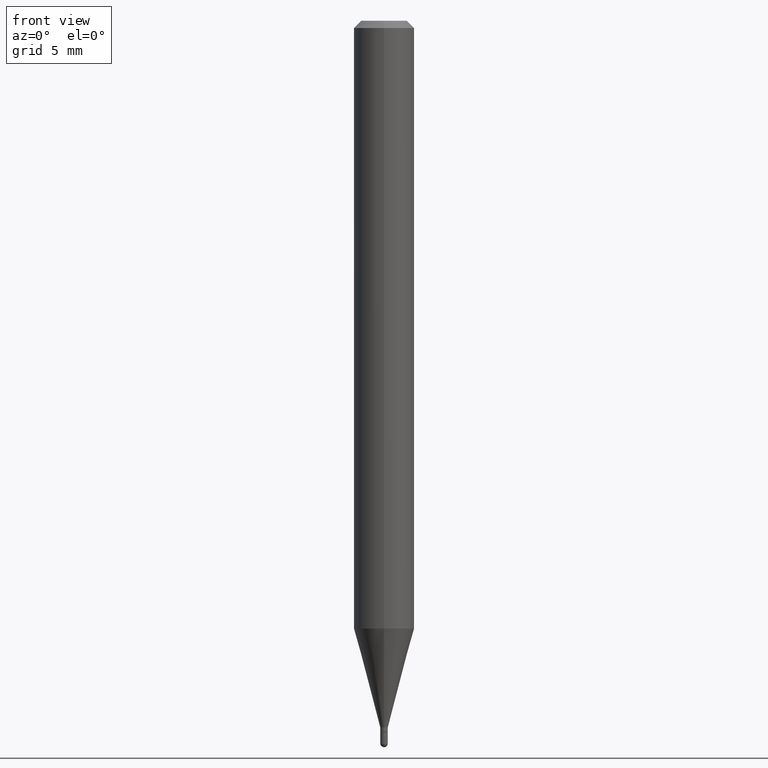
[diagram: clean part render]
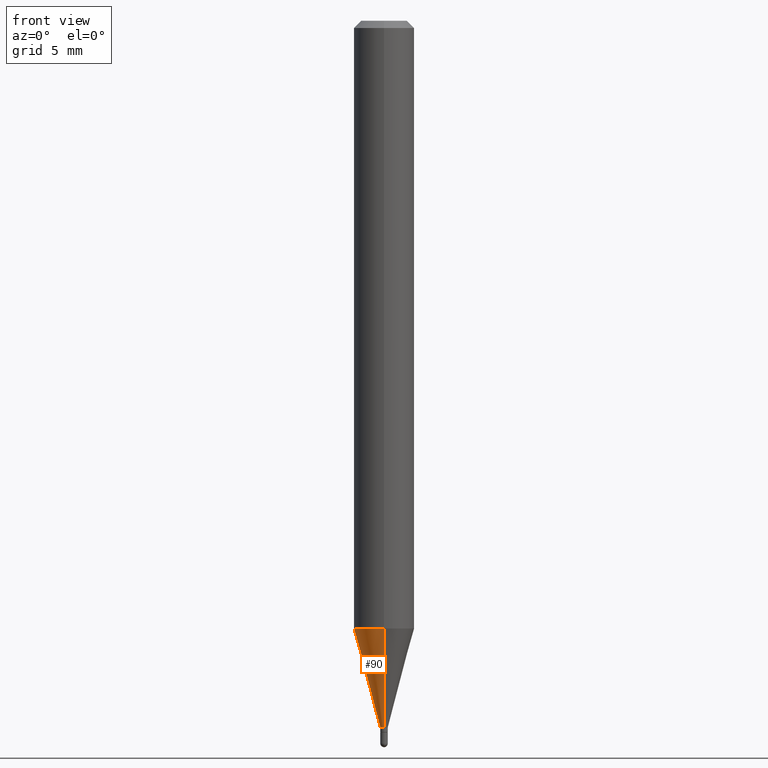
[diagram: same view with one face highlighted and labeled with its STEP entity id]
A machine part, front view. The second image highlights one B-rep face of the part: STEP entity #90.
In plain terms, the highlighted conical surface has half-angle 15 deg.
Its self-contained STEP definition (entity closure, byte-faithful):
#2 = DIRECTION ( 'NONE',  ( -2.438888398687161749E-29, 3.500904856913780958E-15, 1.000000000000000000 ) ) ;
#15 = VECTOR ( 'NONE', #78, 39.37007874015748143 ) ;
#18 = CARTESIAN_POINT ( 'NONE',  ( -5.446710888591297207E-17, -0.007800000000004489974, -1.459000000000000519 ) ) ;
#19 = ORIENTED_EDGE ( 'NONE', *, *, #257, .T. ) ;
#21 = CARTESIAN_POINT ( 'NONE',  ( -4.364351673553611504E-16, -0.06250000000000441314, -1.254856820825980934 ) ) ;
#26 = VERTEX_POINT ( 'NONE', #21 ) ;
#55 = AXIS2_PLACEMENT_3D ( 'NONE', #358, #353, #396 ) ;
#78 = DIRECTION ( 'NONE',  ( 1.839019923739600315E-15, 0.2588190451025249583, 0.9659258262890670910 ) ) ;
#79 = CONICAL_SURFACE ( 'NONE', #55, 0.007799999999999381213, 0.2617993877991502960 ) ;
#90 = ADVANCED_FACE ( 'NONE', ( #189 ), #79, .T. ) ;
#125 = CARTESIAN_POINT ( 'NONE',  ( 4.440892098500931845E-16, 0.06249999999999561462, -1.254856820825981378 ) ) ;
#127 = CARTESIAN_POINT ( 'NONE',  ( 3.558338173684570517E-29, -5.107820186237207836E-15, -1.459000000000000519 ) ) ;
#134 = CARTESIAN_POINT ( 'NONE',  ( 2.497557716197062816E-16, 0.007799999999994272452, -1.459000000000000519 ) ) ;
#164 = LINE ( 'NONE', #366, #15 ) ;
#189 = FACE_OUTER_BOUND ( 'NONE', #211, .T. ) ;
#208 = DIRECTION ( 'NONE',  ( -2.438888398687161749E-29, 3.500904856913780958E-15, 1.000000000000000000 ) ) ;
#211 = EDGE_LOOP ( 'NONE', ( #486, #19, #423, #504 ) ) ;
#257 = EDGE_CURVE ( 'NONE', #449, #410, #394, .T. ) ;
#320 = AXIS2_PLACEMENT_3D ( 'NONE', #444, #2, #325 ) ;
#325 = DIRECTION ( 'NONE',  ( -6.982962677686265922E-15, -1.000000000000000000, 4.370956789862819572E-15 ) ) ;
#331 = VERTEX_POINT ( 'NONE', #125 ) ;
#338 = EDGE_CURVE ( 'NONE', #449, #331, #164, .T. ) ;
#345 = CIRCLE ( 'NONE', #320, 0.06250000000000002776 ) ;
#353 = DIRECTION ( 'NONE',  ( -2.438888398687161749E-29, 3.500904856913780958E-15, 1.000000000000000000 ) ) ;
#358 = CARTESIAN_POINT ( 'NONE',  ( 3.558338173684570517E-29, -5.107820186237207836E-15, -1.459000000000000519 ) ) ;
#366 = CARTESIAN_POINT ( 'NONE',  ( 5.542233338931899661E-17, 0.007799999999994273320, -1.459000000000000519 ) ) ;
#370 = EDGE_CURVE ( 'NONE', #331, #26, #345, .T. ) ;
#373 = DIRECTION ( 'NONE',  ( -6.982962677686266711E-15, -1.000000000000000000, 0.000000000000000000 ) ) ;
#390 = EDGE_CURVE ( 'NONE', #410, #26, #498, .T. ) ;
#394 = CIRCLE ( 'NONE', #432, 0.007799999999999381213 ) ;
#396 = DIRECTION ( 'NONE',  ( -6.982962677686266711E-15, -1.000000000000000000, 0.000000000000000000 ) ) ;
#410 = VERTEX_POINT ( 'NONE', #450 ) ;
#420 = DIRECTION ( 'NONE',  ( -1.807323732225330139E-15, -0.2588190451025181860, 0.9659258262890689783 ) ) ;
#423 = ORIENTED_EDGE ( 'NONE', *, *, #390, .T. ) ;
#432 = AXIS2_PLACEMENT_3D ( 'NONE', #127, #208, #373 ) ;
#437 = VECTOR ( 'NONE', #420, 39.37007874015748143 ) ;
#444 = CARTESIAN_POINT ( 'NONE',  ( 3.060455742325940316E-29, -4.393134338761063639E-15, -1.254856820825981156 ) ) ;
#449 = VERTEX_POINT ( 'NONE', #134 ) ;
#450 = CARTESIAN_POINT ( 'NONE',  ( -5.446710888591297207E-17, -0.007800000000004489974, -1.459000000000000519 ) ) ;
#486 = ORIENTED_EDGE ( 'NONE', *, *, #338, .F. ) ;
#498 = LINE ( 'NONE', #18, #437 ) ;
#504 = ORIENTED_EDGE ( 'NONE', *, *, #370, .F. ) ;